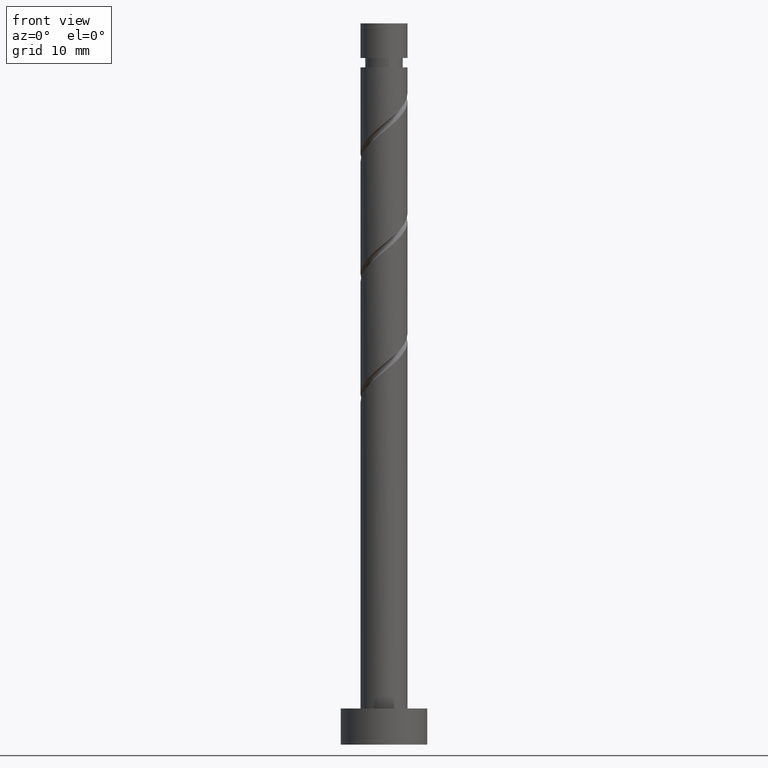
[diagram: clean part render]
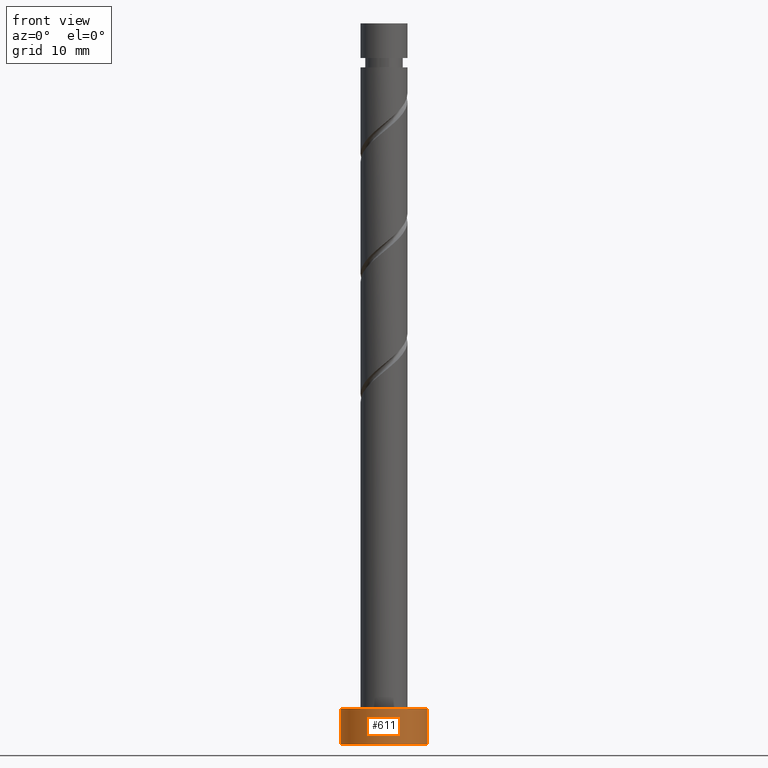
[diagram: same view with one face highlighted and labeled with its STEP entity id]
A machine part, front view. The second image highlights one B-rep face of the part: STEP entity #611.
In plain terms, the highlighted cylindrical surface (partial cylindrical patch) has radius 6 mm, axis along (-0, -0, -1).
Its self-contained STEP definition (entity closure, byte-faithful):
#42 = EDGE_LOOP ( 'NONE', ( #942, #343, #1432, #305 ) ) ;
#61 = CARTESIAN_POINT ( 'NONE',  ( 6.000000000000000888, 7.347880794884120722E-16, 0.000000000000000000 ) ) ;
#85 = DIRECTION ( 'NONE',  ( 0.000000000000000000, 0.000000000000000000, 1.000000000000000000 ) ) ;
#147 = AXIS2_PLACEMENT_3D ( 'NONE', #1064, #1306, #980 ) ;
#226 = CARTESIAN_POINT ( 'NONE',  ( 0.000000000000000000, 0.000000000000000000, 0.000000000000000000 ) ) ;
#305 = ORIENTED_EDGE ( 'NONE', *, *, #441, .T. ) ;
#343 = ORIENTED_EDGE ( 'NONE', *, *, #502, .F. ) ;
#395 = VERTEX_POINT ( 'NONE', #61 ) ;
#420 = CARTESIAN_POINT ( 'NONE',  ( 6.000000000000000888, 7.347880794884120722E-16, 5.000000000000000000 ) ) ;
#441 = EDGE_CURVE ( 'NONE', #1063, #395, #1334, .T. ) ;
#455 = AXIS2_PLACEMENT_3D ( 'NONE', #226, #85, #1445 ) ;
#502 = EDGE_CURVE ( 'NONE', #969, #1198, #801, .T. ) ;
#525 = VECTOR ( 'NONE', #570, 1000.000000000000000 ) ;
#570 = DIRECTION ( 'NONE',  ( -0.000000000000000000, -0.000000000000000000, -1.000000000000000000 ) ) ;
#596 = CARTESIAN_POINT ( 'NONE',  ( 0.000000000000000000, 0.000000000000000000, 5.000000000000000000 ) ) ;
#611 = ADVANCED_FACE ( 'NONE', ( #743 ), #956, .T. ) ;
#665 = CARTESIAN_POINT ( 'NONE',  ( -6.000000000000000888, 0.000000000000000000, 0.000000000000000000 ) ) ;
#674 = DIRECTION ( 'NONE',  ( -0.000000000000000000, -0.000000000000000000, -1.000000000000000000 ) ) ;
#678 = CARTESIAN_POINT ( 'NONE',  ( -6.000000000000000888, 0.000000000000000000, 5.000000000000000000 ) ) ;
#743 = FACE_OUTER_BOUND ( 'NONE', #42, .T. ) ;
#799 = DIRECTION ( 'NONE',  ( 0.000000000000000000, 0.000000000000000000, 1.000000000000000000 ) ) ;
#801 = CIRCLE ( 'NONE', #847, 6.000000000000000888 ) ;
#847 = AXIS2_PLACEMENT_3D ( 'NONE', #596, #799, #1279 ) ;
#942 = ORIENTED_EDGE ( 'NONE', *, *, #1299, .F. ) ;
#956 = CYLINDRICAL_SURFACE ( 'NONE', #147, 6.000000000000000888 ) ;
#964 = LINE ( 'NONE', #995, #1028 ) ;
#969 = VERTEX_POINT ( 'NONE', #678 ) ;
#980 = DIRECTION ( 'NONE',  ( -1.000000000000000000, 0.000000000000000000, 0.000000000000000000 ) ) ;
#995 = CARTESIAN_POINT ( 'NONE',  ( 6.000000000000000888, 7.347880794884120722E-16, 5.000000000000000000 ) ) ;
#1028 = VECTOR ( 'NONE', #674, 1000.000000000000000 ) ;
#1063 = VERTEX_POINT ( 'NONE', #665 ) ;
#1064 = CARTESIAN_POINT ( 'NONE',  ( 0.000000000000000000, 0.000000000000000000, 5.000000000000000000 ) ) ;
#1198 = VERTEX_POINT ( 'NONE', #420 ) ;
#1279 = DIRECTION ( 'NONE',  ( 1.000000000000000000, 0.000000000000000000, 0.000000000000000000 ) ) ;
#1299 = EDGE_CURVE ( 'NONE', #1198, #395, #964, .T. ) ;
#1306 = DIRECTION ( 'NONE',  ( -0.000000000000000000, -0.000000000000000000, -1.000000000000000000 ) ) ;
#1334 = CIRCLE ( 'NONE', #455, 6.000000000000000888 ) ;
#1410 = EDGE_CURVE ( 'NONE', #969, #1063, #1483, .T. ) ;
#1432 = ORIENTED_EDGE ( 'NONE', *, *, #1410, .T. ) ;
#1445 = DIRECTION ( 'NONE',  ( 1.000000000000000000, 0.000000000000000000, 0.000000000000000000 ) ) ;
#1475 = CARTESIAN_POINT ( 'NONE',  ( -6.000000000000000888, 0.000000000000000000, 5.000000000000000000 ) ) ;
#1483 = LINE ( 'NONE', #1475, #525 ) ;